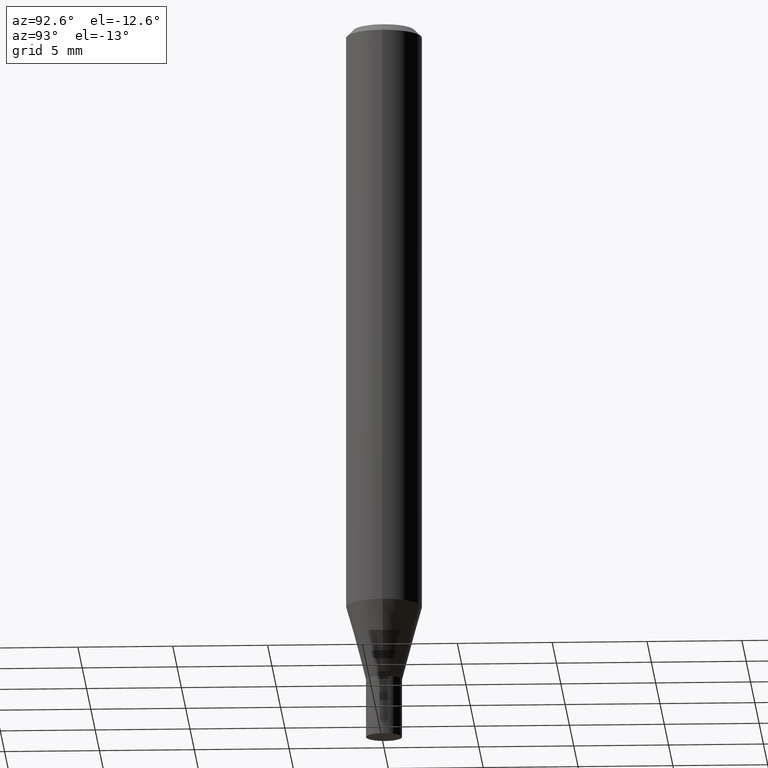
[diagram: clean part render]
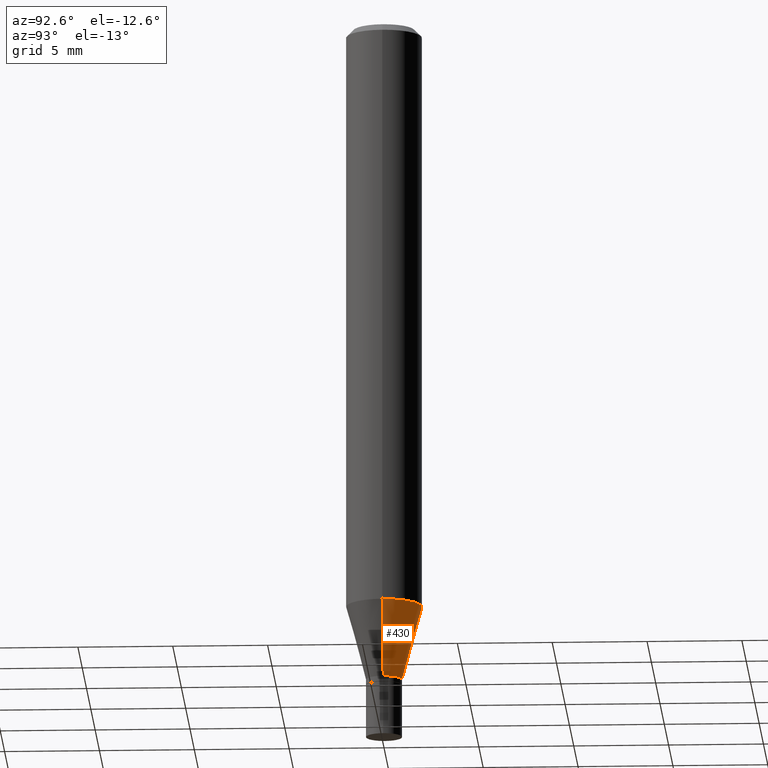
[diagram: same view with one face highlighted and labeled with its STEP entity id]
A machine part, auxiliary view. The second image highlights one B-rep face of the part: STEP entity #430.
In plain terms, the highlighted conical surface has half-angle 15 deg.
Its self-contained STEP definition (entity closure, byte-faithful):
#8 = CIRCLE ( 'NONE', #70, 0.07875000000000000056 ) ;
#13 = CARTESIAN_POINT ( 'NONE',  ( -0.07875000000000000056, -3.712902429742301625E-15, -1.223679699107026897 ) ) ;
#24 = EDGE_CURVE ( 'NONE', #238, #457, #8, .T. ) ;
#43 = DIRECTION ( 'NONE',  ( -2.445468806185136597E-29, 3.491481338843145583E-15, 1.000000000000000000 ) ) ;
#64 = VECTOR ( 'NONE', #463, 39.37007874015748143 ) ;
#67 = EDGE_CURVE ( 'NONE', #259, #457, #206, .T. ) ;
#69 = LINE ( 'NONE', #245, #64 ) ;
#70 = AXIS2_PLACEMENT_3D ( 'NONE', #251, #276, #350 ) ;
#95 = AXIS2_PLACEMENT_3D ( 'NONE', #349, #131, #283 ) ;
#96 = VERTEX_POINT ( 'NONE', #314 ) ;
#121 = DIRECTION ( 'NONE',  ( -0.2588190451025210170, 5.211531920934547886E-15, 0.9659258262890682012 ) ) ;
#131 = DIRECTION ( 'NONE',  ( -2.445468806185136597E-29, 3.491481338843145583E-15, 1.000000000000000000 ) ) ;
#134 = VECTOR ( 'NONE', #121, 39.37007874015748143 ) ;
#146 = CARTESIAN_POINT ( 'NONE',  ( 0.07875000000000000056, -4.822363145021172984E-15, -1.223679699107026897 ) ) ;
#206 = LINE ( 'NONE', #235, #134 ) ;
#235 = CARTESIAN_POINT ( 'NONE',  ( -0.03739999999999991942, -4.545518301751578928E-15, -1.378000000000000114 ) ) ;
#238 = VERTEX_POINT ( 'NONE', #146 ) ;
#243 = CONICAL_SURFACE ( 'NONE', #280, 0.03739999999999991942, 0.2617993877991496854 ) ;
#245 = CARTESIAN_POINT ( 'NONE',  ( 0.03739999999999991942, -5.072424089071321140E-15, -1.378000000000000114 ) ) ;
#251 = CARTESIAN_POINT ( 'NONE',  ( 2.992470532928248490E-29, -4.272454834153379638E-15, -1.223679699107026897 ) ) ;
#259 = VERTEX_POINT ( 'NONE', #343 ) ;
#276 = DIRECTION ( 'NONE',  ( -2.445468806185136597E-29, 3.491481338843145583E-15, 1.000000000000000000 ) ) ;
#280 = AXIS2_PLACEMENT_3D ( 'NONE', #358, #43, #315 ) ;
#283 = DIRECTION ( 'NONE',  ( 1.000000000000000000, -6.982962677686265133E-15, 0.000000000000000000 ) ) ;
#289 = CIRCLE ( 'NONE', #95, 0.03739999999999991942 ) ;
#309 = EDGE_CURVE ( 'NONE', #96, #259, #289, .T. ) ;
#314 = CARTESIAN_POINT ( 'NONE',  ( 0.03739999999999991942, -5.072424089071321140E-15, -1.378000000000000114 ) ) ;
#315 = DIRECTION ( 'NONE',  ( 1.000000000000000000, -6.982962677686265133E-15, 0.000000000000000000 ) ) ;
#330 = ORIENTED_EDGE ( 'NONE', *, *, #309, .T. ) ;
#333 = ORIENTED_EDGE ( 'NONE', *, *, #67, .T. ) ;
#337 = ORIENTED_EDGE ( 'NONE', *, *, #24, .F. ) ;
#343 = CARTESIAN_POINT ( 'NONE',  ( -0.03739999999999991942, -4.129210365746939882E-15, -1.378000000000000114 ) ) ;
#349 = CARTESIAN_POINT ( 'NONE',  ( 3.369856014923118508E-29, -4.811261284925855529E-15, -1.378000000000000114 ) ) ;
#350 = DIRECTION ( 'NONE',  ( 1.000000000000000000, -6.982962677686261977E-15, 0.000000000000000000 ) ) ;
#357 = EDGE_CURVE ( 'NONE', #96, #238, #69, .T. ) ;
#358 = CARTESIAN_POINT ( 'NONE',  ( 3.369856014923118508E-29, -4.811261284925855529E-15, -1.378000000000000114 ) ) ;
#364 = ORIENTED_EDGE ( 'NONE', *, *, #357, .F. ) ;
#387 = FACE_OUTER_BOUND ( 'NONE', #393, .T. ) ;
#393 = EDGE_LOOP ( 'NONE', ( #330, #333, #337, #364 ) ) ;
#430 = ADVANCED_FACE ( 'NONE', ( #387 ), #243, .T. ) ;
#457 = VERTEX_POINT ( 'NONE', #13 ) ;
#463 = DIRECTION ( 'NONE',  ( 0.2588190451025210170, 1.565188264969624531E-15, 0.9659258262890682012 ) ) ;